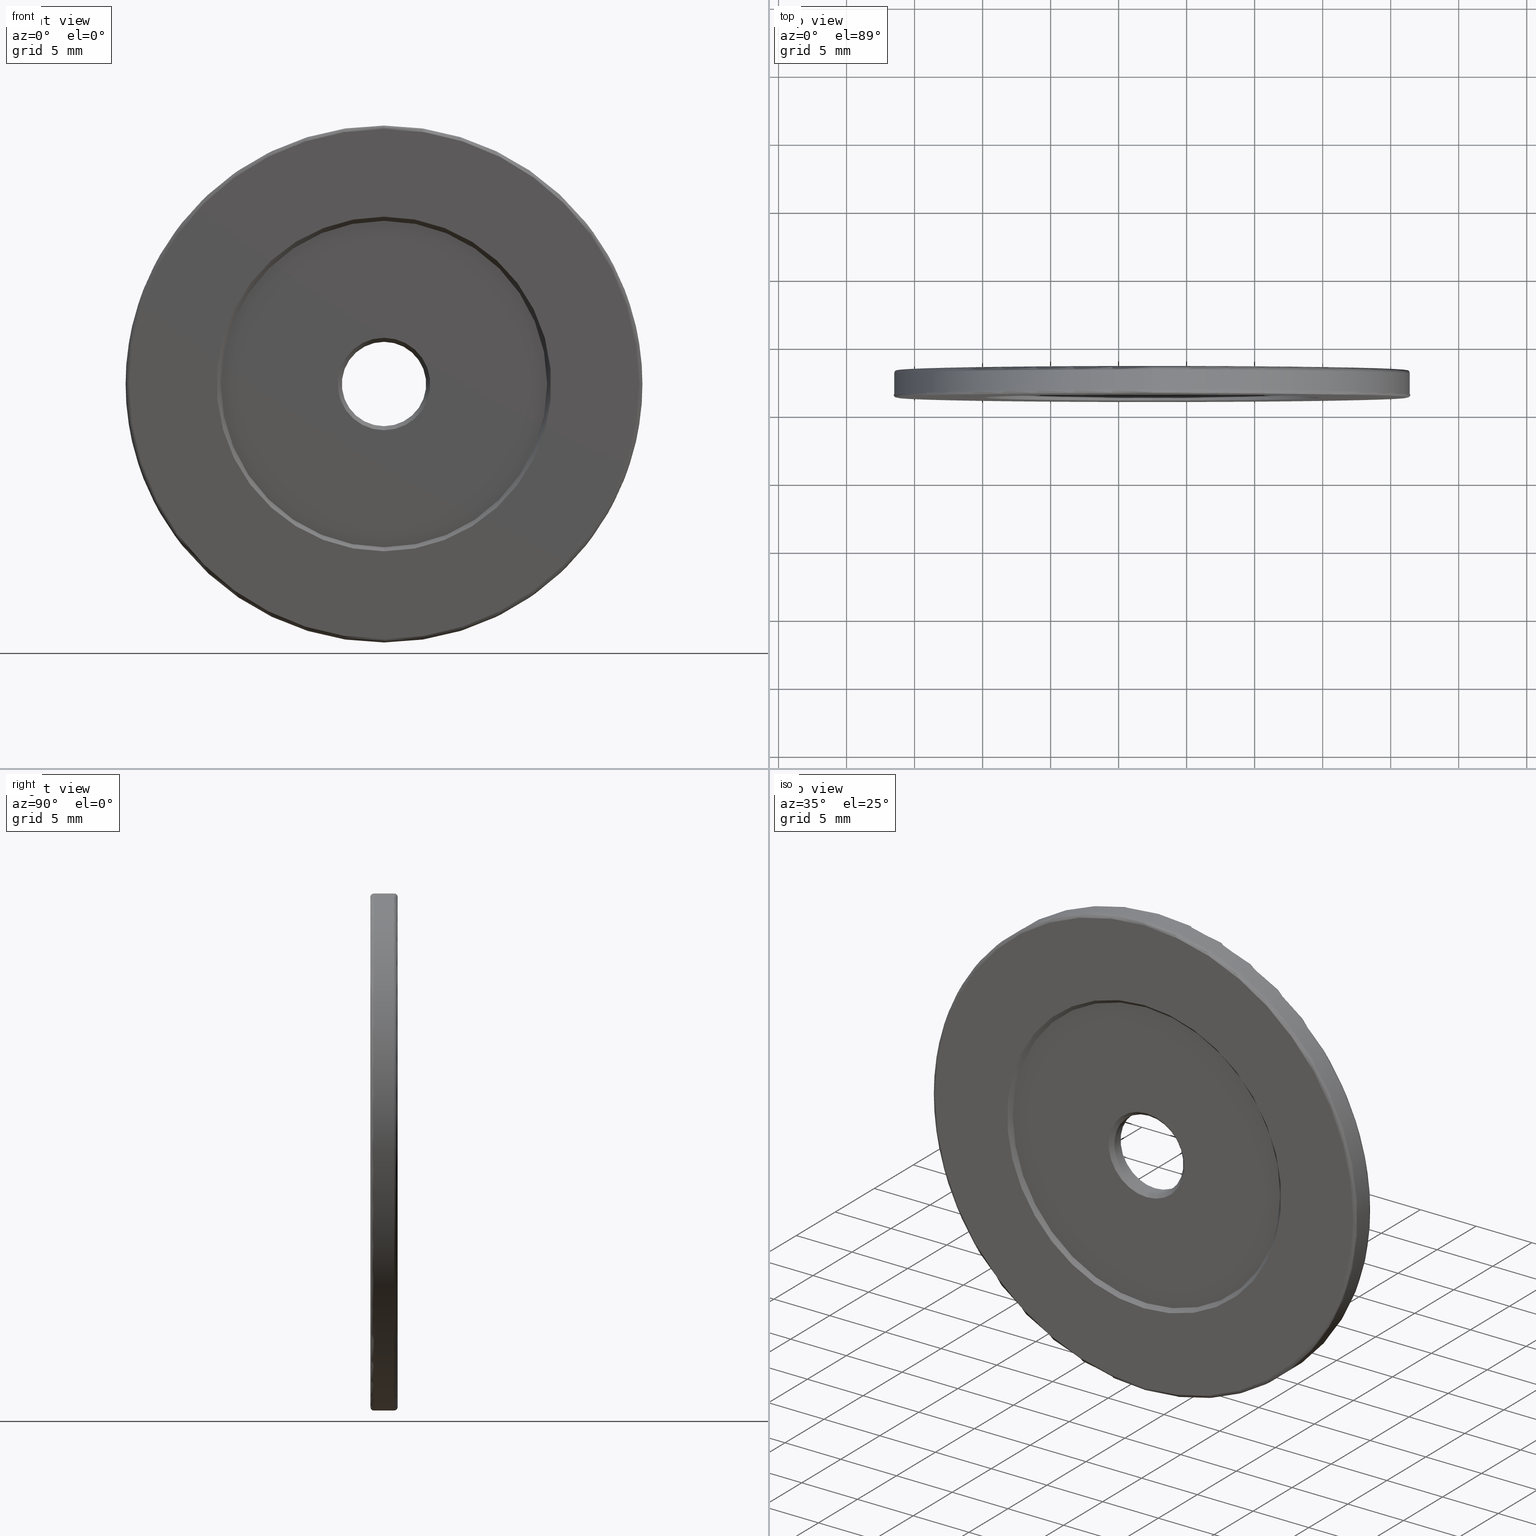
[diagram: canonical four-view strip — front | top / right | iso, engineering-drawing reading convention]
A machine part, canonical four-view strip (front | top / right | iso — engineering-drawing reading convention). The complete STEP part file that produces these views, byte-faithful:
ISO-10303-21;
HEADER;
FILE_DESCRIPTION (( 'STEP AP203' ),
    '1' );
FILE_NAME ('1.4.2.115_ZGH-38-DK2.STEP',
    '2024-04-06T05:19:27',
    ( '' ),
    ( '' ),
    'SwSTEP 2.0',
    'SolidWorks 2021',
    '' );
FILE_SCHEMA (( 'CONFIG_CONTROL_DESIGN' ));
ENDSEC;

DATA;
#1 = ORIENTED_EDGE ( 'NONE', *, *, #226, .T. ) ;
#2 = CARTESIAN_POINT ( 'NONE',  ( -7.546808913101048510, -2.143595127302728276, 38.00000000000000000 ) ) ;
#3 = EDGE_CURVE ( 'NONE', #402, #351, #409, .T. ) ;
#4 = ORIENTED_EDGE ( 'NONE', *, *, #373, .T. ) ;
#5 = CARTESIAN_POINT ( 'NONE',  ( -7.546808913101048510, -2.493595127302719483, 38.00000000000000000 ) ) ;
#6 = DIRECTION ( 'NONE',  ( 0.000000000000000000, 0.000000000000000000, 1.000000000000000000 ) ) ;
#7 = EDGE_CURVE ( 'NONE', #404, #63, #360, .T. ) ;
#8 = EDGE_LOOP ( 'NONE', ( #138, #28, #235, #19 ) ) ;
#9 = CALENDAR_DATE ( 2024, 6, 4 ) ;
#10 = LOCAL_TIME ( 13, 19, 27.00000000000000000, #205 ) ;
#11 = CYLINDRICAL_SURFACE ( 'NONE', #376, 3.099999999999998757 ) ;
#12 = EDGE_LOOP ( 'NONE', ( #114, #314, #130, #611 ) ) ;
#13 = DIRECTION ( 'NONE',  ( 0.000000000000000000, 0.000000000000000000, 1.000000000000000000 ) ) ;
#14 = FACE_OUTER_BOUND ( 'NONE', #185, .T. ) ;
#15 = SHELL_BASED_SURFACE_MODEL ( 'NONE', ( #233 ) );
#16 = DIRECTION ( 'NONE',  ( 0.000000000000000000, 0.000000000000000000, 1.000000000000000000 ) ) ;
#17 = APPROVAL_DATE_TIME ( #543, #308 ) ;
#18 = CARTESIAN_POINT ( 'NONE',  ( -7.546808913101048510, -2.193595127302727654, 38.00000000000000000 ) ) ;
#19 = ORIENTED_EDGE ( 'NONE', *, *, #454, .F. ) ;
#20 = APPROVAL_ROLE ( '' ) ;
#21 = CARTESIAN_POINT ( 'NONE',  ( -7.546808913101048510, -2.193595127302727654, 38.00000000000000000 ) ) ;
#22 = CIRCLE ( 'NONE', #147, 12.00000000000000355 ) ;
#23 = DIRECTION ( 'NONE',  ( 0.000000000000000000, 1.000000000000000000, 0.000000000000000000 ) ) ;
#24 = PRODUCT_RELATED_PRODUCT_CATEGORY ( 'detail', '', ( #190 ) ) ;
#25 = ORIENTED_EDGE ( 'NONE', *, *, #137, .T. ) ;
#26 = UNCERTAINTY_MEASURE_WITH_UNIT (LENGTH_MEASURE( 1.000000000000000082E-05 ), #343, 'distance_accuracy_value', 'NONE');
#27 = DIRECTION ( 'NONE',  ( 0.000000000000000000, 0.000000000000000000, -1.000000000000000000 ) ) ;
#28 = ORIENTED_EDGE ( 'NONE', *, *, #479, .T. ) ;
#29 = FACE_BOUND ( 'NONE', #392, .T. ) ;
#30 = AXIS2_PLACEMENT_3D ( 'NONE', #222, #602, #367 ) ;
#31 = VECTOR ( 'NONE', #46, 1000.000000000000000 ) ;
#32 = DIRECTION ( 'NONE',  ( 0.000000000000000000, 1.000000000000000000, 0.000000000000000000 ) ) ;
#33 = AXIS2_PLACEMENT_3D ( 'NONE', #502, #456, #585 ) ;
#34 = EDGE_LOOP ( 'NONE', ( #42, #4, #264, #383 ) ) ;
#35 = CARTESIAN_POINT ( 'NONE',  ( -7.546808913101048510, -2.143595127302728276, 56.99999999999999289 ) ) ;
#36 = ORIENTED_EDGE ( 'NONE', *, *, #113, .F. ) ;
#37 = PLANE ( 'NONE',  #375 ) ;
#38 = DIRECTION ( 'NONE',  ( 0.000000000000000000, 0.000000000000000000, -1.000000000000000000 ) ) ;
#39 = AXIS2_PLACEMENT_3D ( 'NONE', #378, #290, #154 ) ;
#40 = AXIS2_PLACEMENT_3D ( 'NONE', #494, #153, #121 ) ;
#41 = DIRECTION ( 'NONE',  ( 1.000000000000000000, -0.000000000000000000, 1.224646799147353207E-16 ) ) ;
#42 = ORIENTED_EDGE ( 'NONE', *, *, #603, .F. ) ;
#43 = CARTESIAN_POINT ( 'NONE',  ( -7.546808913101048510, -1.893595127302727832, 38.00000000000000000 ) ) ;
#44 = ADVANCED_FACE ( 'NONE', ( #491 ), #82, .T. ) ;
#45 = EDGE_LOOP ( 'NONE', ( #249, #25 ) ) ;
#46 = DIRECTION ( 'NONE',  ( 8.659560562354857670E-17, -0.7071067811865536790, 0.7071067811865414665 ) ) ;
#47 = CIRCLE ( 'NONE', #159, 18.99999999999999645 ) ;
#48 = EDGE_LOOP ( 'NONE', ( #198, #230, #530, #591 ) ) ;
#49 = LOCAL_TIME ( 13, 19, 27.00000000000000000, #347 ) ;
#50 = CIRCLE ( 'NONE', #161, 18.74999999999999645 ) ;
#51 = ORIENTED_EDGE ( 'NONE', *, *, #396, .T. ) ;
#52 = ADVANCED_FACE ( 'NONE', ( #354, #117 ), #204, .T. ) ;
#53 = EDGE_CURVE ( 'NONE', #272, #404, #213, .T. ) ;
#54 = ORIENTED_EDGE ( 'NONE', *, *, #282, .T. ) ;
#55 = APPROVAL_ROLE ( '' ) ;
#56 = CARTESIAN_POINT ( 'NONE',  ( -7.546808913101048510, -2.193595127302727654, 38.00000000000000000 ) ) ;
#57 = ORIENTED_EDGE ( 'NONE', *, *, #167, .F. ) ;
#58 = FACE_OUTER_BOUND ( 'NONE', #211, .T. ) ;
#59 = CIRCLE ( 'NONE', #180, 0.2500000000000002220 ) ;
#60 = DIRECTION ( 'NONE',  ( 0.000000000000000000, -0.7071067811865536790, -0.7071067811865414665 ) ) ;
#61 = SECURITY_CLASSIFICATION ( '', '', #68 ) ;
#62 = AXIS2_PLACEMENT_3D ( 'NONE', #206, #587, #148 ) ;
#63 = VERTEX_POINT ( 'NONE', #539 ) ;
#64 = DIRECTION ( 'NONE',  ( 0.000000000000000000, 0.000000000000000000, 1.000000000000000000 ) ) ;
#65 = CARTESIAN_POINT ( 'NONE',  ( -7.546808913101048510, -2.193595127302727654, 38.00000000000000000 ) ) ;
#66 = ADVANCED_FACE ( 'NONE', ( #559 ), #275, .F. ) ;
#67 = CARTESIAN_POINT ( 'NONE',  ( -7.546808913101048510, -3.593595127302728010, 38.00000000000000000 ) ) ;
#68 = SECURITY_CLASSIFICATION_LEVEL ( 'unclassified' ) ;
#69 = CARTESIAN_POINT ( 'NONE',  ( -7.546808913101048510, -3.293595127302728187, 41.09999999999999432 ) ) ;
#70 = EDGE_LOOP ( 'NONE', ( #486, #397 ) ) ;
#71 = ADVANCED_FACE ( 'NONE', ( #223 ), #259, .T. ) ;
#72 = DIRECTION ( 'NONE',  ( 8.659560562354858902E-17, 0.7071067811865536790, -0.7071067811865414665 ) ) ;
#73 = CC_DESIGN_PERSON_AND_ORGANIZATION_ASSIGNMENT ( #540, #111, ( #461 ) ) ;
#74 = AXIS2_PLACEMENT_3D ( 'NONE', #555, #183, #475 ) ;
#75 = ORIENTED_EDGE ( 'NONE', *, *, #609, .T. ) ;
#76 = CALENDAR_DATE ( 2024, 6, 4 ) ;
#77 = LINE ( 'NONE', #164, #127 ) ;
#78 = ORIENTED_EDGE ( 'NONE', *, *, #125, .F. ) ;
#79 = FACE_OUTER_BOUND ( 'NONE', #394, .T. ) ;
#80 = DIRECTION ( 'NONE',  ( 0.000000000000000000, 1.000000000000000000, 0.000000000000000000 ) ) ;
#81 = AXIS2_PLACEMENT_3D ( 'NONE', #276, #512, #519 ) ;
#82 = TOROIDAL_SURFACE ( 'NONE', #449, 18.75000000000000000, 0.2500000000000000000 ) ;
#83 = CONICAL_SURFACE ( 'NONE', #400, 3.400000000000000355, 0.7853981633974490562 ) ;
#84 = CARTESIAN_POINT ( 'NONE',  ( -7.546808913101045846, -2.143595127302728276, 19.25000000000000000 ) ) ;
#85 = VERTEX_POINT ( 'NONE', #551 ) ;
#86 = DIRECTION ( 'NONE',  ( 0.000000000000000000, 0.000000000000000000, 1.000000000000000000 ) ) ;
#87 = DIRECTION ( 'NONE',  ( -0.000000000000000000, 1.000000000000000000, -0.000000000000000000 ) ) ;
#88 = AXIS2_PLACEMENT_3D ( 'NONE', #193, #202, #427 ) ;
#89 = CARTESIAN_POINT ( 'NONE',  ( -7.546808913101048510, -3.893595127302727832, 38.00000000000000000 ) ) ;
#90 = VERTEX_POINT ( 'NONE', #508 ) ;
#91 = DIRECTION ( 'NONE',  ( -0.000000000000000000, -1.000000000000000000, -0.000000000000000000 ) ) ;
#92 = CC_DESIGN_PERSON_AND_ORGANIZATION_ASSIGNMENT ( #208, #450, ( #61 ) ) ;
#93 = ORIENTED_EDGE ( 'NONE', *, *, #169, .F. ) ;
#94 = VECTOR ( 'NONE', #224, 1000.000000000000000 ) ;
#95 = ORIENTED_EDGE ( 'NONE', *, *, #488, .F. ) ;
#96 = CIRCLE ( 'NONE', #436, 18.74999999999999645 ) ;
#97 = ADVANCED_FACE ( 'NONE', ( #243, #381 ), #99, .T. ) ;
#98 = VERTEX_POINT ( 'NONE', #526 ) ;
#99 = PLANE ( 'NONE',  #88 ) ;
#100 = ORIENTED_EDGE ( 'NONE', *, *, #203, .F. ) ;
#101 = CARTESIAN_POINT ( 'NONE',  ( -7.546808913101048510, -1.893595127302727832, 38.00000000000000000 ) ) ;
#102 = DIRECTION ( 'NONE',  ( 0.000000000000000000, 1.000000000000000000, 0.000000000000000000 ) ) ;
#103 = ORIENTED_EDGE ( 'NONE', *, *, #569, .T. ) ;
#104 = CARTESIAN_POINT ( 'NONE',  ( -7.546808913101045846, -3.643595127302727832, 19.25000000000000000 ) ) ;
#105 = CIRCLE ( 'NONE', #144, 3.099999999999998757 ) ;
#106 = LOCAL_TIME ( 13, 19, 27.00000000000000000, #352 ) ;
#107 = DIRECTION ( 'NONE',  ( 0.000000000000000000, 0.000000000000000000, 1.000000000000000000 ) ) ;
#108 = EDGE_CURVE ( 'NONE', #189, #145, #96, .T. ) ;
#109 = AXIS2_PLACEMENT_3D ( 'NONE', #533, #102, #107 ) ;
#110 = DIRECTION ( 'NONE',  ( 0.000000000000000000, 0.000000000000000000, -1.000000000000000000 ) ) ;
#111 = PERSON_AND_ORGANIZATION_ROLE ( 'creator' ) ;
#112 = CARTESIAN_POINT ( 'NONE',  ( -7.546808913101045846, -3.643595127302727832, 56.99999999999999289 ) ) ;
#113 = EDGE_CURVE ( 'NONE', #351, #560, #443, .T. ) ;
#114 = ORIENTED_EDGE ( 'NONE', *, *, #455, .T. ) ;
#115 = SHAPE_DEFINITION_REPRESENTATION ( #177, #283 ) ;
#116 = CARTESIAN_POINT ( 'NONE',  ( -7.546808913101048510, -3.893595127302727832, 38.00000000000000000 ) ) ;
#117 = FACE_OUTER_BOUND ( 'NONE', #45, .T. ) ;
#118 = FACE_OUTER_BOUND ( 'NONE', #369, .T. ) ;
#119 = EDGE_CURVE ( 'NONE', #85, #476, #225, .T. ) ;
#120 = CIRCLE ( 'NONE', #346, 12.00000000000000355 ) ;
#121 = DIRECTION ( 'NONE',  ( 0.000000000000000000, 0.000000000000000000, 1.000000000000000000 ) ) ;
#122 = CARTESIAN_POINT ( 'NONE',  ( -7.546808913101048510, -3.593595127302728010, 25.99999999999999645 ) ) ;
#123 = DIRECTION ( 'NONE',  ( 0.000000000000000000, -1.000000000000000000, 0.000000000000000000 ) ) ;
#124 = DIRECTION ( 'NONE',  ( 8.659560562354833018E-17, 0.7071067811865556774, -0.7071067811865393571 ) ) ;
#125 = EDGE_CURVE ( 'NONE', #476, #85, #278, .T. ) ;
#126 = VECTOR ( 'NONE', #87, 1000.000000000000000 ) ;
#127 = VECTOR ( 'NONE', #303, 1000.000000000000000 ) ;
#128 = ORIENTED_EDGE ( 'NONE', *, *, #140, .F. ) ;
#129 = DIRECTION ( 'NONE',  ( 0.000000000000000000, 1.000000000000000000, 0.000000000000000000 ) ) ;
#130 = ORIENTED_EDGE ( 'NONE', *, *, #552, .T. ) ;
#131 = CARTESIAN_POINT ( 'NONE',  ( -7.546808913101046734, -3.893595127302727832, 50.29999999999999716 ) ) ;
#132 = DIRECTION ( 'NONE',  ( 0.000000000000000000, 0.000000000000000000, 1.000000000000000000 ) ) ;
#133 = LINE ( 'NONE', #186, #126 ) ;
#134 = AXIS2_PLACEMENT_3D ( 'NONE', #564, #91, #38 ) ;
#135 = VECTOR ( 'NONE', #72, 1000.000000000000000 ) ;
#136 = CARTESIAN_POINT ( 'NONE',  ( -7.546808913101048510, -2.193595127302736536, 50.00000000000000000 ) ) ;
#137 = EDGE_CURVE ( 'NONE', #304, #389, #120, .T. ) ;
#138 = ORIENTED_EDGE ( 'NONE', *, *, #137, .F. ) ;
#139 = CARTESIAN_POINT ( 'NONE',  ( -7.546808913101048510, -2.493595127302719483, 41.09999999999999432 ) ) ;
#140 = EDGE_CURVE ( 'NONE', #90, #441, #604, .T. ) ;
#141 = ORIENTED_EDGE ( 'NONE', *, *, #319, .F. ) ;
#142 = DIRECTION ( 'NONE',  ( 0.000000000000000000, 0.000000000000000000, -1.000000000000000000 ) ) ;
#143 = DIRECTION ( 'NONE',  ( 0.000000000000000000, 0.000000000000000000, 1.000000000000000000 ) ) ;
#144 = AXIS2_PLACEMENT_3D ( 'NONE', #5, #296, #13 ) ;
#145 = VERTEX_POINT ( 'NONE', #432 ) ;
#146 = LINE ( 'NONE', #139, #478 ) ;
#147 = AXIS2_PLACEMENT_3D ( 'NONE', #21, #595, #597 ) ;
#148 = DIRECTION ( 'NONE',  ( 0.000000000000000000, 0.000000000000000000, 1.000000000000000000 ) ) ;
#149 = ORIENTED_EDGE ( 'NONE', *, *, #603, .T. ) ;
#150 = PERSON_AND_ORGANIZATION ( #514, #386 ) ;
#151 = APPROVAL ( #261, 'δָ��' ) ;
#152 = CARTESIAN_POINT ( 'NONE',  ( -7.546808913101048510, -3.893595127302727832, 38.00000000000000000 ) ) ;
#153 = DIRECTION ( 'NONE',  ( -0.000000000000000000, 1.000000000000000000, -0.000000000000000000 ) ) ;
#154 = DIRECTION ( 'NONE',  ( 1.000000000000000000, 0.000000000000000000, 0.000000000000000000 ) ) ;
#155 = ADVANCED_FACE ( 'NONE', ( #333 ), #11, .F. ) ;
#156 = DIRECTION ( 'NONE',  ( 0.000000000000000000, 1.000000000000000000, 0.000000000000000000 ) ) ;
#157 = ORIENTED_EDGE ( 'NONE', *, *, #322, .F. ) ;
#158 = CALENDAR_DATE ( 2024, 6, 4 ) ;
#159 = AXIS2_PLACEMENT_3D ( 'NONE', #2, #330, #568 ) ;
#160 = CARTESIAN_POINT ( 'NONE',  ( -7.546808913101048510, -1.893595127302727832, 38.00000000000000000 ) ) ;
#161 = AXIS2_PLACEMENT_3D ( 'NONE', #116, #209, #546 ) ;
#162 = ORIENTED_EDGE ( 'NONE', *, *, #373, .F. ) ;
#163 = DATE_TIME_ROLE ( 'classification_date' ) ;
#164 = CARTESIAN_POINT ( 'NONE',  ( -7.546808913101048510, -3.593595127302728010, 34.60000000000000142 ) ) ;
#165 = ORIENTED_EDGE ( 'NONE', *, *, #455, .F. ) ;
#166 = PERSON_AND_ORGANIZATION_ROLE ( 'design_supplier' ) ;
#167 = EDGE_CURVE ( 'NONE', #251, #357, #341, .T. ) ;
#168 = DIRECTION ( 'NONE',  ( -0.000000000000000000, -1.000000000000000000, -0.000000000000000000 ) ) ;
#169 = EDGE_CURVE ( 'NONE', #560, #377, #188, .T. ) ;
#170 = ORIENTED_EDGE ( 'NONE', *, *, #3, .T. ) ;
#171 = CARTESIAN_POINT ( 'NONE',  ( -7.546808913101048510, -3.893595127302727832, 38.00000000000000000 ) ) ;
#172 = CONICAL_SURFACE ( 'NONE', #447, 3.400000000000000355, 0.7853981633974490562 ) ;
#173 = CC_DESIGN_SECURITY_CLASSIFICATION ( #61, ( #461 ) ) ;
#174 = DIRECTION ( 'NONE',  ( 0.000000000000000000, 0.000000000000000000, 1.000000000000000000 ) ) ;
#175 = ADVANCED_FACE ( 'NONE', ( #293 ), #577, .T. ) ;
#176 = CARTESIAN_POINT ( 'NONE',  ( -7.546808913101048510, -2.193595127302727654, 50.00000000000000000 ) ) ;
#177 = PRODUCT_DEFINITION_SHAPE ( 'NONE', 'NONE',  #421 ) ;
#178 = LINE ( 'NONE', #273, #576 ) ;
#179 = ADVANCED_FACE ( 'NONE', ( #14 ), #464, .T. ) ;
#180 = AXIS2_PLACEMENT_3D ( 'NONE', #104, #431, #492 ) ;
#181 = APPROVAL ( #487, 'δָ��' ) ;
#182 = ORIENTED_EDGE ( 'NONE', *, *, #234, .F. ) ;
#183 = DIRECTION ( 'NONE',  ( 0.000000000000000000, 1.000000000000000000, 0.000000000000000000 ) ) ;
#184 = DIRECTION ( 'NONE',  ( -1.000000000000000000, 0.000000000000000000, 0.000000000000000000 ) ) ;
#185 = EDGE_LOOP ( 'NONE', ( #162, #182, #294, #466 ) ) ;
#186 = CARTESIAN_POINT ( 'NONE',  ( -7.546808913101048510, -3.893595127302727832, 41.09999999999999432 ) ) ;
#187 = CIRCLE ( 'NONE', #81, 3.099999999999998757 ) ;
#188 = CIRCLE ( 'NONE', #109, 12.29999999999999893 ) ;
#189 = VERTEX_POINT ( 'NONE', #584 ) ;
#190 = PRODUCT ( '1.4.2.115_ZGH-38-DK2', '1.4.2.115_ZGH-38-DK2', '', ( #482 ) ) ;
#191 = EDGE_LOOP ( 'NONE', ( #149, #419, #448, #425 ) ) ;
#192 = DIRECTION ( 'NONE',  ( -0.000000000000000000, -1.000000000000000000, -0.000000000000000000 ) ) ;
#193 = CARTESIAN_POINT ( 'NONE',  ( -7.546808913101048510, -1.893595127302727832, 38.00000000000000000 ) ) ;
#194 = VERTEX_POINT ( 'NONE', #250 ) ;
#195 = DIRECTION ( 'NONE',  ( 0.000000000000000000, 1.000000000000000000, 0.000000000000000000 ) ) ;
#196 = DIRECTION ( 'NONE',  ( -0.000000000000000000, -1.000000000000000000, -0.000000000000000000 ) ) ;
#197 = LOCAL_TIME ( 13, 19, 27.00000000000000000, #242 ) ;
#198 = ORIENTED_EDGE ( 'NONE', *, *, #552, .F. ) ;
#199 = DIRECTION ( 'NONE',  ( -0.000000000000000000, -1.000000000000000000, -0.000000000000000000 ) ) ;
#200 = AXIS2_PLACEMENT_3D ( 'NONE', #408, #405, #507 ) ;
#201 = ORIENTED_EDGE ( 'NONE', *, *, #510, .T. ) ;
#202 = DIRECTION ( 'NONE',  ( 0.000000000000000000, 1.000000000000000000, 0.000000000000000000 ) ) ;
#203 = EDGE_CURVE ( 'NONE', #238, #357, #578, .T. ) ;
#204 = PLANE ( 'NONE',  #33 ) ;
#205 = COORDINATED_UNIVERSAL_TIME_OFFSET ( 8, 0, .AHEAD. ) ;
#206 = CARTESIAN_POINT ( 'NONE',  ( -7.546808913101048510, -3.643595127302727832, 38.00000000000000000 ) ) ;
#207 = EDGE_LOOP ( 'NONE', ( #462, #379, #444, #579 ) ) ;
#208 = PERSON_AND_ORGANIZATION ( #514, #386 ) ;
#209 = DIRECTION ( 'NONE',  ( -0.000000000000000000, -1.000000000000000000, -0.000000000000000000 ) ) ;
#210 = EDGE_CURVE ( 'NONE', #98, #476, #253, .T. ) ;
#211 = EDGE_LOOP ( 'NONE', ( #570, #141, #406, #128 ) ) ;
#212 = DIRECTION ( 'NONE',  ( 0.000000000000000000, 0.000000000000000000, 1.000000000000000000 ) ) ;
#213 = LINE ( 'NONE', #345, #589 ) ;
#214 = LINE ( 'NONE', #403, #521 ) ;
#215 = ORIENTED_EDGE ( 'NONE', *, *, #328, .F. ) ;
#216 = CARTESIAN_POINT ( 'NONE',  ( -7.546808913101048510, -3.293595127302728187, 34.89999999999999858 ) ) ;
#217 = CIRCLE ( 'NONE', #200, 18.99999999999999645 ) ;
#218 = ADVANCED_FACE ( 'NONE', ( #401 ), #490, .T. ) ;
#219 = VERTEX_POINT ( 'NONE', #307 ) ;
#220 = CARTESIAN_POINT ( 'NONE',  ( -7.546808913101048510, -3.593595127302728010, 38.00000000000000000 ) ) ;
#221 = EDGE_CURVE ( 'NONE', #357, #238, #217, .T. ) ;
#222 = CARTESIAN_POINT ( 'NONE',  ( -7.546808913101048510, -1.893595127302727832, 38.00000000000000000 ) ) ;
#223 = FACE_OUTER_BOUND ( 'NONE', #207, .T. ) ;
#224 = DIRECTION ( 'NONE',  ( -0.000000000000000000, 1.000000000000000000, -0.000000000000000000 ) ) ;
#225 = CIRCLE ( 'NONE', #423, 3.399999999999986144 ) ;
#226 = EDGE_CURVE ( 'NONE', #63, #404, #416, .T. ) ;
#227 = DIRECTION ( 'NONE',  ( 0.000000000000000000, 0.7071067811865556774, 0.7071067811865393571 ) ) ;
#228 = DIRECTION ( 'NONE',  ( 0.000000000000000000, 0.000000000000000000, 1.000000000000000000 ) ) ;
#229 = CARTESIAN_POINT ( 'NONE',  ( -7.546808913101048510, -3.593595127302728010, 38.00000000000000000 ) ) ;
#230 = ORIENTED_EDGE ( 'NONE', *, *, #210, .T. ) ;
#231 = CARTESIAN_POINT ( 'NONE',  ( -7.546808913101048510, -2.193595127302736536, 38.00000000000000000 ) ) ;
#232 =( GEOMETRIC_REPRESENTATION_CONTEXT ( 3 ) GLOBAL_UNCERTAINTY_ASSIGNED_CONTEXT ( ( #26 ) ) GLOBAL_UNIT_ASSIGNED_CONTEXT ( ( #343, #612, #236 ) ) REPRESENTATION_CONTEXT ( 'NONE', 'WORKASPACE' ) );
#233 = OPEN_SHELL ( 'NONE', ( #363, #371, #66, #350, #440, #71, #468, #218, #97, #179, #175, #44, #500, #267, #266, #515, #155, #338, #52, #573 ) ) ;
#234 = EDGE_CURVE ( 'NONE', #251, #194, #270, .T. ) ;
#235 = ORIENTED_EDGE ( 'NONE', *, *, #598, .F. ) ;
#236 =( NAMED_UNIT ( * ) SI_UNIT ( $, .STERADIAN. ) SOLID_ANGLE_UNIT ( ) );
#237 = DIRECTION ( 'NONE',  ( 0.000000000000000000, 0.000000000000000000, 1.000000000000000000 ) ) ;
#238 = VERTEX_POINT ( 'NONE', #497 ) ;
#239 = PERSON_AND_ORGANIZATION ( #514, #386 ) ;
#240 = DIRECTION ( 'NONE',  ( -0.000000000000000000, -1.000000000000000000, -0.000000000000000000 ) ) ;
#241 = ORIENTED_EDGE ( 'NONE', *, *, #203, .T. ) ;
#242 = COORDINATED_UNIVERSAL_TIME_OFFSET ( 8, 0, .AHEAD. ) ;
#243 = FACE_OUTER_BOUND ( 'NONE', #339, .T. ) ;
#244 = CIRCLE ( 'NONE', #518, 0.2500000000000002220 ) ;
#245 = ORIENTED_EDGE ( 'NONE', *, *, #53, .F. ) ;
#246 = DIRECTION ( 'NONE',  ( 0.000000000000000000, 0.7071067811865536790, 0.7071067811865414665 ) ) ;
#247 = CIRCLE ( 'NONE', #297, 3.099999999999998757 ) ;
#248 = CARTESIAN_POINT ( 'NONE',  ( -7.546808913101045846, -1.893595127302727832, 56.99999999999999289 ) ) ;
#249 = ORIENTED_EDGE ( 'NONE', *, *, #319, .T. ) ;
#250 = CARTESIAN_POINT ( 'NONE',  ( -7.546808913101044958, -2.143595127302728276, 19.00000000000000000 ) ) ;
#251 = VERTEX_POINT ( 'NONE', #35 ) ;
#252 = COORDINATED_UNIVERSAL_TIME_OFFSET ( 8, 0, .AHEAD. ) ;
#253 = LINE ( 'NONE', #268, #135 ) ;
#254 = EDGE_CURVE ( 'NONE', #280, #63, #77, .T. ) ;
#255 = ORIENTED_EDGE ( 'NONE', *, *, #7, .F. ) ;
#256 = PERSON_AND_ORGANIZATION ( #514, #386 ) ;
#257 = CIRCLE ( 'NONE', #588, 0.2500000000000002220 ) ;
#258 = APPROVAL_PERSON_ORGANIZATION ( #445, #308, #20 ) ;
#259 = TOROIDAL_SURFACE ( 'NONE', #366, 18.75000000000000000, 0.2500000000000000000 ) ;
#260 = EDGE_LOOP ( 'NONE', ( #57, #332, #54, #241 ) ) ;
#261 = APPROVAL_STATUS ( 'not_yet_approved' ) ;
#262 = FACE_OUTER_BOUND ( 'NONE', #563, .T. ) ;
#263 = CC_DESIGN_PERSON_AND_ORGANIZATION_ASSIGNMENT ( #239, #380, ( #190 ) ) ;
#264 = ORIENTED_EDGE ( 'NONE', *, *, #510, .F. ) ;
#265 = CARTESIAN_POINT ( 'NONE',  ( -7.546808913101048510, -3.593595127302728010, 38.00000000000000000 ) ) ;
#266 = ADVANCED_FACE ( 'NONE', ( #29, #505 ), #544, .T. ) ;
#267 = ADVANCED_FACE ( 'NONE', ( #262 ), #566, .F. ) ;
#268 = CARTESIAN_POINT ( 'NONE',  ( -7.546808913101048510, -2.493595127302719483, 34.89999999999999858 ) ) ;
#269 = CC_DESIGN_APPROVAL ( #151, ( #461 ) ) ;
#270 = CIRCLE ( 'NONE', #398, 18.99999999999999645 ) ;
#271 = DIRECTION ( 'NONE',  ( -0.000000000000000000, -1.000000000000000000, -0.000000000000000000 ) ) ;
#272 = VERTEX_POINT ( 'NONE', #69 ) ;
#273 = CARTESIAN_POINT ( 'NONE',  ( -7.546808913101046734, -2.193595127302736536, 25.99999999999999645 ) ) ;
#274 = EDGE_CURVE ( 'NONE', #351, #402, #556, .T. ) ;
#275 = CYLINDRICAL_SURFACE ( 'NONE', #599, 3.099999999999998757 ) ;
#276 = CARTESIAN_POINT ( 'NONE',  ( -7.546808913101048510, -3.293595127302728187, 38.00000000000000000 ) ) ;
#277 = CC_DESIGN_APPROVAL ( #181, ( #421 ) ) ;
#278 = CIRCLE ( 'NONE', #529, 3.399999999999986144 ) ;
#279 = FACE_OUTER_BOUND ( 'NONE', #481, .T. ) ;
#280 = VERTEX_POINT ( 'NONE', #216 ) ;
#281 = CARTESIAN_POINT ( 'NONE',  ( -7.546808913101048510, -2.493595127302719483, 41.09999999999999432 ) ) ;
#282 = EDGE_CURVE ( 'NONE', #194, #238, #214, .T. ) ;
#283 = MANIFOLD_SURFACE_SHAPE_REPRESENTATION ( '1.4.2.115_ZGH-38-DK2', ( #15, #39 ), #232 ) ;
#284 = ORIENTED_EDGE ( 'NONE', *, *, #169, .T. ) ;
#285 = DIRECTION ( 'NONE',  ( 0.000000000000000000, 1.000000000000000000, 0.000000000000000000 ) ) ;
#286 = DIRECTION ( 'NONE',  ( 0.000000000000000000, 0.000000000000000000, 1.000000000000000000 ) ) ;
#287 = CONICAL_SURFACE ( 'NONE', #74, 3.099999999999998757, 0.7853981633974396193 ) ;
#288 = AXIS2_PLACEMENT_3D ( 'NONE', #493, #156, #6 ) ;
#289 = EDGE_LOOP ( 'NONE', ( #329, #326 ) ) ;
#290 = DIRECTION ( 'NONE',  ( 0.000000000000000000, 0.000000000000000000, 1.000000000000000000 ) ) ;
#291 = DIRECTION ( 'NONE',  ( -0.000000000000000000, 1.000000000000000000, -0.000000000000000000 ) ) ;
#292 = EDGE_LOOP ( 'NONE', ( #301, #157, #51, #100 ) ) ;
#293 = FACE_OUTER_BOUND ( 'NONE', #260, .T. ) ;
#294 = ORIENTED_EDGE ( 'NONE', *, *, #387, .T. ) ;
#295 = DIRECTION ( 'NONE',  ( 0.000000000000000000, 1.000000000000000000, 0.000000000000000000 ) ) ;
#296 = DIRECTION ( 'NONE',  ( 0.000000000000000000, 1.000000000000000000, 0.000000000000000000 ) ) ;
#297 = AXIS2_PLACEMENT_3D ( 'NONE', #457, #80, #300 ) ;
#298 = DIRECTION ( 'NONE',  ( 8.659560562354939021E-17, -0.7071067811865470176, 0.7071067811865480168 ) ) ;
#299 = DATE_AND_TIME ( #158, #49 ) ;
#300 = DIRECTION ( 'NONE',  ( 0.000000000000000000, 0.000000000000000000, 1.000000000000000000 ) ) ;
#301 = ORIENTED_EDGE ( 'NONE', *, *, #562, .F. ) ;
#302 = CALENDAR_DATE ( 2024, 6, 4 ) ;
#303 = DIRECTION ( 'NONE',  ( 0.000000000000000000, -0.7071067811865470176, -0.7071067811865480168 ) ) ;
#304 = VERTEX_POINT ( 'NONE', #553 ) ;
#305 = APPROVAL_ROLE ( '' ) ;
#306 = CC_DESIGN_APPROVAL ( #308, ( #61 ) ) ;
#307 = CARTESIAN_POINT ( 'NONE',  ( -7.546808913101048510, -3.893595127302727832, 56.74999999999999289 ) ) ;
#308 = APPROVAL ( #399, 'δָ��' ) ;
#309 = AXIS2_PLACEMENT_3D ( 'NONE', #356, #353, #174 ) ;
#310 = ORIENTED_EDGE ( 'NONE', *, *, #274, .T. ) ;
#311 = CARTESIAN_POINT ( 'NONE',  ( -7.546808913101048510, -2.143595127302728276, 38.00000000000000000 ) ) ;
#312 = CARTESIAN_POINT ( 'NONE',  ( -7.546808913101048510, -3.643595127302727832, 38.00000000000000000 ) ) ;
#313 = DIRECTION ( 'NONE',  ( 0.000000000000000000, 0.000000000000000000, 1.000000000000000000 ) ) ;
#314 = ORIENTED_EDGE ( 'NONE', *, *, #488, .T. ) ;
#315 = AXIS2_PLACEMENT_3D ( 'NONE', #101, #192, #337 ) ;
#316 = DIRECTION ( 'NONE',  ( -1.000000000000000000, 0.000000000000000000, 0.000000000000000000 ) ) ;
#317 = AXIS2_PLACEMENT_3D ( 'NONE', #393, #439, #429 ) ;
#318 = DIRECTION ( 'NONE',  ( 0.000000000000000000, -0.000000000000000000, 1.000000000000000000 ) ) ;
#319 = EDGE_CURVE ( 'NONE', #389, #304, #22, .T. ) ;
#320 = ORIENTED_EDGE ( 'NONE', *, *, #254, .F. ) ;
#321 = FACE_OUTER_BOUND ( 'NONE', #191, .T. ) ;
#322 = EDGE_CURVE ( 'NONE', #219, #522, #503, .T. ) ;
#323 = CARTESIAN_POINT ( 'NONE',  ( -7.546808913101048510, -3.593595127302728010, 41.39999999999999858 ) ) ;
#324 = CC_DESIGN_DATE_AND_TIME_ASSIGNMENT ( #395, #592, ( #421 ) ) ;
#325 = AXIS2_PLACEMENT_3D ( 'NONE', #601, #452, #459 ) ;
#326 = ORIENTED_EDGE ( 'NONE', *, *, #3, .F. ) ;
#327 = CARTESIAN_POINT ( 'NONE',  ( -7.546808913101048510, -2.193595127302727654, 34.60000000000001563 ) ) ;
#328 = EDGE_CURVE ( 'NONE', #484, #98, #247, .T. ) ;
#329 = ORIENTED_EDGE ( 'NONE', *, *, #274, .F. ) ;
#330 = DIRECTION ( 'NONE',  ( -0.000000000000000000, -1.000000000000000000, -0.000000000000000000 ) ) ;
#331 = EDGE_CURVE ( 'NONE', #522, #219, #50, .T. ) ;
#332 = ORIENTED_EDGE ( 'NONE', *, *, #234, .T. ) ;
#333 = FACE_OUTER_BOUND ( 'NONE', #606, .T. ) ;
#334 = CIRCLE ( 'NONE', #315, 12.30000000000000604 ) ;
#335 = AXIS2_PLACEMENT_3D ( 'NONE', #311, #23, #509 ) ;
#336 = ORIENTED_EDGE ( 'NONE', *, *, #382, .T. ) ;
#337 = DIRECTION ( 'NONE',  ( 0.000000000000000000, 0.000000000000000000, 1.000000000000000000 ) ) ;
#338 = ADVANCED_FACE ( 'NONE', ( #118 ), #513, .F. ) ;
#339 = EDGE_LOOP ( 'NONE', ( #201, #498 ) ) ;
#340 = PERSON_AND_ORGANIZATION_ROLE ( 'creator' ) ;
#341 = LINE ( 'NONE', #248, #388 ) ;
#342 = DIRECTION ( 'NONE',  ( -0.000000000000000000, 1.000000000000000000, -0.000000000000000000 ) ) ;
#343 =( LENGTH_UNIT ( ) NAMED_UNIT ( * ) SI_UNIT ( .MILLI., .METRE. ) );
#344 = DIRECTION ( 'NONE',  ( 0.000000000000000000, 0.000000000000000000, 1.000000000000000000 ) ) ;
#345 = CARTESIAN_POINT ( 'NONE',  ( -7.546808913101048510, -3.593595127302728010, 41.39999999999999858 ) ) ;
#346 = AXIS2_PLACEMENT_3D ( 'NONE', #56, #582, #237 ) ;
#347 = COORDINATED_UNIVERSAL_TIME_OFFSET ( 8, 0, .AHEAD. ) ;
#348 = AXIS2_PLACEMENT_3D ( 'NONE', #410, #359, #550 ) ;
#349 = CARTESIAN_POINT ( 'NONE',  ( -7.546808913101048510, -3.593595127302728010, 38.00000000000000000 ) ) ;
#350 = ADVANCED_FACE ( 'NONE', ( #79 ), #83, .F. ) ;
#351 = VERTEX_POINT ( 'NONE', #122 ) ;
#352 = COORDINATED_UNIVERSAL_TIME_OFFSET ( 8, 0, .AHEAD. ) ;
#353 = DIRECTION ( 'NONE',  ( -0.000000000000000000, 1.000000000000000000, -0.000000000000000000 ) ) ;
#354 = FACE_BOUND ( 'NONE', #548, .T. ) ;
#355 = CC_DESIGN_PERSON_AND_ORGANIZATION_ASSIGNMENT ( #256, #166, ( #461 ) ) ;
#356 = CARTESIAN_POINT ( 'NONE',  ( -7.546808913101048510, -3.593595127302728010, 38.00000000000000000 ) ) ;
#357 = VERTEX_POINT ( 'NONE', #112 ) ;
#358 = CIRCLE ( 'NONE', #30, 18.74999999999999645 ) ;
#359 = DIRECTION ( 'NONE',  ( 0.000000000000000000, 1.000000000000000000, 0.000000000000000000 ) ) ;
#360 = CIRCLE ( 'NONE', #538, 3.400000000000000355 ) ;
#361 = CARTESIAN_POINT ( 'NONE',  ( -7.546808913101048510, -2.143595127302728276, 38.00000000000000000 ) ) ;
#362 = CARTESIAN_POINT ( 'NONE',  ( -7.546808913101046734, -3.593595127302728010, 50.00000000000000000 ) ) ;
#363 = ADVANCED_FACE ( 'NONE', ( #418 ), #424, .F. ) ;
#364 = AXIS2_PLACEMENT_3D ( 'NONE', #43, #271, #370 ) ;
#365 = CARTESIAN_POINT ( 'NONE',  ( -7.546808913101046734, -3.893595127302727832, 50.29999999999999716 ) ) ;
#366 = AXIS2_PLACEMENT_3D ( 'NONE', #312, #32, #132 ) ;
#367 = DIRECTION ( 'NONE',  ( 0.000000000000000000, 0.000000000000000000, 1.000000000000000000 ) ) ;
#368 = CARTESIAN_POINT ( 'NONE',  ( -7.546808913101048510, -3.893595127302727832, 38.00000000000000000 ) ) ;
#369 = EDGE_LOOP ( 'NONE', ( #428, #215, #506, #78 ) ) ;
#370 = DIRECTION ( 'NONE',  ( 0.000000000000000000, 0.000000000000000000, -1.000000000000000000 ) ) ;
#371 = ADVANCED_FACE ( 'NONE', ( #517 ), #287, .F. ) ;
#372 = CARTESIAN_POINT ( 'NONE',  ( -7.546808913101048510, -1.893595127302727832, 50.30000000000000426 ) ) ;
#373 = EDGE_CURVE ( 'NONE', #194, #189, #244, .T. ) ;
#374 = CIRCLE ( 'NONE', #460, 3.099999999999998757 ) ;
#375 = AXIS2_PLACEMENT_3D ( 'NONE', #89, #129, #318 ) ;
#376 = AXIS2_PLACEMENT_3D ( 'NONE', #152, #291, #483 ) ;
#377 = VERTEX_POINT ( 'NONE', #365 ) ;
#378 = CARTESIAN_POINT ( 'NONE',  ( 0.000000000000000000, 0.000000000000000000, 0.000000000000000000 ) ) ;
#379 = ORIENTED_EDGE ( 'NONE', *, *, #562, .T. ) ;
#380 = PERSON_AND_ORGANIZATION_ROLE ( 'design_owner' ) ;
#381 = FACE_BOUND ( 'NONE', #458, .T. ) ;
#382 = EDGE_CURVE ( 'NONE', #272, #484, #133, .T. ) ;
#383 = ORIENTED_EDGE ( 'NONE', *, *, #387, .F. ) ;
#384 = PERSON_AND_ORGANIZATION ( #514, #386 ) ;
#385 = DIRECTION ( 'NONE',  ( -0.000000000000000000, -1.000000000000000000, -0.000000000000000000 ) ) ;
#386 = ORGANIZATION ( 'δָ��', 'δָ��', '' ) ;
#387 = EDGE_CURVE ( 'NONE', #251, #145, #257, .T. ) ;
#388 = VECTOR ( 'NONE', #240, 1000.000000000000000 ) ;
#389 = VERTEX_POINT ( 'NONE', #176 ) ;
#390 = DATE_AND_TIME ( #9, #197 ) ;
#391 = DIRECTION ( 'NONE',  ( 0.000000000000000000, 0.000000000000000000, 1.000000000000000000 ) ) ;
#392 = EDGE_LOOP ( 'NONE', ( #1, #531 ) ) ;
#393 = CARTESIAN_POINT ( 'NONE',  ( -7.546808913101048510, -1.893595127302727832, 38.00000000000000000 ) ) ;
#394 = EDGE_LOOP ( 'NONE', ( #165, #474, #534, #320 ) ) ;
#395 = DATE_AND_TIME ( #302, #10 ) ;
#396 = EDGE_CURVE ( 'NONE', #219, #357, #422, .T. ) ;
#397 = ORIENTED_EDGE ( 'NONE', *, *, #331, .T. ) ;
#398 = AXIS2_PLACEMENT_3D ( 'NONE', #361, #593, #212 ) ;
#399 = APPROVAL_STATUS ( 'not_yet_approved' ) ;
#400 = AXIS2_PLACEMENT_3D ( 'NONE', #349, #541, #27 ) ;
#401 = FACE_OUTER_BOUND ( 'NONE', #34, .T. ) ;
#402 = VERTEX_POINT ( 'NONE', #362 ) ;
#403 = CARTESIAN_POINT ( 'NONE',  ( -7.546808913101048510, -1.893595127302727832, 19.00000000000000000 ) ) ;
#404 = VERTEX_POINT ( 'NONE', #323 ) ;
#405 = DIRECTION ( 'NONE',  ( 0.000000000000000000, 1.000000000000000000, 0.000000000000000000 ) ) ;
#406 = ORIENTED_EDGE ( 'NONE', *, *, #454, .T. ) ;
#407 = CONICAL_SURFACE ( 'NONE', #134, 12.29999999999999893, 0.7853981633974396193 ) ;
#408 = CARTESIAN_POINT ( 'NONE',  ( -7.546808913101048510, -3.643595127302727832, 38.00000000000000000 ) ) ;
#409 = CIRCLE ( 'NONE', #40, 12.00000000000000355 ) ;
#410 = CARTESIAN_POINT ( 'NONE',  ( -7.546808913101048510, -2.493595127302719483, 38.00000000000000000 ) ) ;
#411 = DIRECTION ( 'NONE',  ( -0.000000000000000000, 1.000000000000000000, -0.000000000000000000 ) ) ;
#412 = CARTESIAN_POINT ( 'NONE',  ( -7.546808913101048510, -3.893595127302727832, 34.89999999999999858 ) ) ;
#413 = AXIS2_PLACEMENT_3D ( 'NONE', #525, #285, #528 ) ;
#414 = FACE_BOUND ( 'NONE', #430, .T. ) ;
#415 = APPROVAL_PERSON_ORGANIZATION ( #496, #151, #305 ) ;
#416 = CIRCLE ( 'NONE', #537, 3.400000000000000355 ) ;
#417 = CYLINDRICAL_SURFACE ( 'NONE', #364, 19.00000000000000000 ) ;
#418 = FACE_OUTER_BOUND ( 'NONE', #8, .T. ) ;
#419 = ORIENTED_EDGE ( 'NONE', *, *, #167, .T. ) ;
#420 = CARTESIAN_POINT ( 'NONE',  ( -7.546808913101048510, -2.143595127302728276, 56.74999999999999289 ) ) ;
#421 = PRODUCT_DEFINITION ( 'δ֪', '', #461, #451 ) ;
#422 = CIRCLE ( 'NONE', #433, 0.2500000000000002220 ) ;
#423 = AXIS2_PLACEMENT_3D ( 'NONE', #65, #536, #143 ) ;
#424 = CONICAL_SURFACE ( 'NONE', #590, 12.00000000000000355, 0.7853981633974367327 ) ;
#425 = ORIENTED_EDGE ( 'NONE', *, *, #282, .F. ) ;
#426 = APPLICATION_PROTOCOL_DEFINITION ( 'international standard', 'config_control_design', 1994, #520 ) ;
#427 = DIRECTION ( 'NONE',  ( 0.000000000000000000, -0.000000000000000000, 1.000000000000000000 ) ) ;
#428 = ORIENTED_EDGE ( 'NONE', *, *, #210, .F. ) ;
#429 = DIRECTION ( 'NONE',  ( 0.000000000000000000, 0.000000000000000000, -1.000000000000000000 ) ) ;
#430 = EDGE_LOOP ( 'NONE', ( #284, #75 ) ) ;
#431 = DIRECTION ( 'NONE',  ( 1.000000000000000000, -0.000000000000000000, 1.224646799147353207E-16 ) ) ;
#432 = CARTESIAN_POINT ( 'NONE',  ( -7.546808913101048510, -1.893595127302727832, 56.74999999999999289 ) ) ;
#433 = AXIS2_PLACEMENT_3D ( 'NONE', #558, #316, #86 ) ;
#434 = LOCAL_TIME ( 13, 19, 27.00000000000000000, #252 ) ;
#435 = CC_DESIGN_PERSON_AND_ORGANIZATION_ASSIGNMENT ( #150, #340, ( #421 ) ) ;
#436 = AXIS2_PLACEMENT_3D ( 'NONE', #160, #572, #344 ) ;
#437 = ORIENTED_EDGE ( 'NONE', *, *, #140, .T. ) ;
#438 = DIRECTION ( 'NONE',  ( 0.000000000000000000, 0.000000000000000000, -1.000000000000000000 ) ) ;
#439 = DIRECTION ( 'NONE',  ( -0.000000000000000000, -1.000000000000000000, -0.000000000000000000 ) ) ;
#440 = ADVANCED_FACE ( 'NONE', ( #605 ), #407, .F. ) ;
#441 = VERTEX_POINT ( 'NONE', #372 ) ;
#442 = DATE_AND_TIME ( #76, #434 ) ;
#443 = LINE ( 'NONE', #485, #472 ) ;
#444 = ORIENTED_EDGE ( 'NONE', *, *, #221, .F. ) ;
#445 = PERSON_AND_ORGANIZATION ( #514, #386 ) ;
#446 = DIRECTION ( 'NONE',  ( 0.000000000000000000, 0.000000000000000000, -1.000000000000000000 ) ) ;
#447 = AXIS2_PLACEMENT_3D ( 'NONE', #229, #561, #142 ) ;
#448 = ORIENTED_EDGE ( 'NONE', *, *, #221, .T. ) ;
#449 = AXIS2_PLACEMENT_3D ( 'NONE', #594, #295, #16 ) ;
#450 = PERSON_AND_ORGANIZATION_ROLE ( 'classification_officer' ) ;
#451 = DESIGN_CONTEXT ( 'detailed design', #453, 'design' ) ;
#452 = DIRECTION ( 'NONE',  ( -0.000000000000000000, -1.000000000000000000, -0.000000000000000000 ) ) ;
#453 = APPLICATION_CONTEXT ( 'configuration controlled 3d designs of mechanical parts and assemblies' ) ;
#454 = EDGE_CURVE ( 'NONE', #389, #441, #565, .T. ) ;
#455 = EDGE_CURVE ( 'NONE', #272, #280, #187, .T. ) ;
#456 = DIRECTION ( 'NONE',  ( 0.000000000000000000, 1.000000000000000000, 0.000000000000000000 ) ) ;
#457 = CARTESIAN_POINT ( 'NONE',  ( -7.546808913101048510, -2.493595127302719483, 38.00000000000000000 ) ) ;
#458 = EDGE_LOOP ( 'NONE', ( #470, #437 ) ) ;
#459 = DIRECTION ( 'NONE',  ( 0.000000000000000000, 0.000000000000000000, -1.000000000000000000 ) ) ;
#460 = AXIS2_PLACEMENT_3D ( 'NONE', #575, #199, #438 ) ;
#461 = PRODUCT_DEFINITION_FORMATION_WITH_SPECIFIED_SOURCE ( '�κ�', '', #190, .NOT_KNOWN. ) ;
#462 = ORIENTED_EDGE ( 'NONE', *, *, #331, .F. ) ;
#463 = DIRECTION ( 'NONE',  ( -0.000000000000000000, 1.000000000000000000, -0.000000000000000000 ) ) ;
#464 = TOROIDAL_SURFACE ( 'NONE', #288, 18.75000000000000000, 0.2500000000000000000 ) ;
#465 = EDGE_CURVE ( 'NONE', #402, #377, #473, .T. ) ;
#466 = ORIENTED_EDGE ( 'NONE', *, *, #108, .F. ) ;
#467 = FACE_OUTER_BOUND ( 'NONE', #70, .T. ) ;
#468 = ADVANCED_FACE ( 'NONE', ( #321 ), #417, .T. ) ;
#469 = LINE ( 'NONE', #412, #94 ) ;
#470 = ORIENTED_EDGE ( 'NONE', *, *, #598, .T. ) ;
#471 = APPROVAL_PERSON_ORGANIZATION ( #384, #181, #55 ) ;
#472 = VECTOR ( 'NONE', #60, 1000.000000000000000 ) ;
#473 = LINE ( 'NONE', #131, #31 ) ;
#474 = ORIENTED_EDGE ( 'NONE', *, *, #53, .T. ) ;
#475 = DIRECTION ( 'NONE',  ( 0.000000000000000000, 0.000000000000000000, 1.000000000000000000 ) ) ;
#476 = VERTEX_POINT ( 'NONE', #327 ) ;
#477 = CARTESIAN_POINT ( 'NONE',  ( -7.546808913101048510, -2.193595127302736536, 38.00000000000000000 ) ) ;
#478 = VECTOR ( 'NONE', #246, 1000.000000000000000 ) ;
#479 = EDGE_CURVE ( 'NONE', #304, #90, #178, .T. ) ;
#480 = CARTESIAN_POINT ( 'NONE',  ( -7.546808913101048510, -1.893595127302727832, 38.00000000000000000 ) ) ;
#481 = EDGE_LOOP ( 'NONE', ( #245, #567, #583, #255 ) ) ;
#482 = MECHANICAL_CONTEXT ( 'NONE', #520, 'mechanical' ) ;
#483 = DIRECTION ( 'NONE',  ( 0.000000000000000000, 0.000000000000000000, 1.000000000000000000 ) ) ;
#484 = VERTEX_POINT ( 'NONE', #281 ) ;
#485 = CARTESIAN_POINT ( 'NONE',  ( -7.546808913101048510, -3.893595127302727832, 25.69999999999999929 ) ) ;
#486 = ORIENTED_EDGE ( 'NONE', *, *, #322, .T. ) ;
#487 = APPROVAL_STATUS ( 'not_yet_approved' ) ;
#488 = EDGE_CURVE ( 'NONE', #280, #98, #469, .T. ) ;
#489 = VECTOR ( 'NONE', #227, 1000.000000000000000 ) ;
#490 = TOROIDAL_SURFACE ( 'NONE', #335, 18.75000000000000000, 0.2500000000000000000 ) ;
#491 = FACE_OUTER_BOUND ( 'NONE', #292, .T. ) ;
#492 = DIRECTION ( 'NONE',  ( 0.000000000000000000, 0.000000000000000000, -1.000000000000000000 ) ) ;
#493 = CARTESIAN_POINT ( 'NONE',  ( -7.546808913101048510, -2.143595127302728276, 38.00000000000000000 ) ) ;
#494 = CARTESIAN_POINT ( 'NONE',  ( -7.546808913101048510, -3.593595127302728010, 38.00000000000000000 ) ) ;
#495 = CC_DESIGN_DATE_AND_TIME_ASSIGNMENT ( #442, #163, ( #61 ) ) ;
#496 = PERSON_AND_ORGANIZATION ( #514, #386 ) ;
#497 = CARTESIAN_POINT ( 'NONE',  ( -7.546808913101048510, -3.643595127302727832, 19.00000000000000000 ) ) ;
#498 = ORIENTED_EDGE ( 'NONE', *, *, #108, .T. ) ;
#499 = DIRECTION ( 'NONE',  ( -0.000000000000000000, -1.000000000000000000, -0.000000000000000000 ) ) ;
#500 = ADVANCED_FACE ( 'NONE', ( #467, #414 ), #37, .F. ) ;
#501 = CIRCLE ( 'NONE', #413, 12.29999999999999893 ) ;
#502 = CARTESIAN_POINT ( 'NONE',  ( -7.546808913101048510, -2.193595127302727654, 38.00000000000000000 ) ) ;
#503 = CIRCLE ( 'NONE', #549, 18.74999999999999645 ) ;
#504 = CALENDAR_DATE ( 2024, 6, 4 ) ;
#505 = FACE_OUTER_BOUND ( 'NONE', #289, .T. ) ;
#506 = ORIENTED_EDGE ( 'NONE', *, *, #581, .T. ) ;
#507 = DIRECTION ( 'NONE',  ( 0.000000000000000000, 0.000000000000000000, 1.000000000000000000 ) ) ;
#508 = CARTESIAN_POINT ( 'NONE',  ( -7.546808913101046734, -1.893595127302727832, 25.69999999999999218 ) ) ;
#509 = DIRECTION ( 'NONE',  ( 0.000000000000000000, 0.000000000000000000, 1.000000000000000000 ) ) ;
#510 = EDGE_CURVE ( 'NONE', #145, #189, #358, .T. ) ;
#511 = AXIS2_PLACEMENT_3D ( 'NONE', #480, #196, #391 ) ;
#512 = DIRECTION ( 'NONE',  ( -0.000000000000000000, -1.000000000000000000, -0.000000000000000000 ) ) ;
#513 = CONICAL_SURFACE ( 'NONE', #348, 3.099999999999998757, 0.7853981633974396193 ) ;
#514 = PERSON ( 'δָ��', 'δָ��', 'δָ��', ('δָ��'), ('δָ��'), ('δָ��') ) ;
#515 = ADVANCED_FACE ( 'NONE', ( #279 ), #172, .F. ) ;
#516 = DIRECTION ( 'NONE',  ( 0.000000000000000000, 0.000000000000000000, -1.000000000000000000 ) ) ;
#517 = FACE_OUTER_BOUND ( 'NONE', #48, .T. ) ;
#518 = AXIS2_PLACEMENT_3D ( 'NONE', #84, #41, #516 ) ;
#519 = DIRECTION ( 'NONE',  ( 0.000000000000000000, 0.000000000000000000, -1.000000000000000000 ) ) ;
#520 = APPLICATION_CONTEXT ( 'configuration controlled 3d designs of mechanical parts and assemblies' ) ;
#521 = VECTOR ( 'NONE', #499, 1000.000000000000000 ) ;
#522 = VERTEX_POINT ( 'NONE', #532 ) ;
#523 = DIRECTION ( 'NONE',  ( 0.000000000000000000, 0.000000000000000000, 1.000000000000000000 ) ) ;
#524 = ORIENTED_EDGE ( 'NONE', *, *, #328, .T. ) ;
#525 = CARTESIAN_POINT ( 'NONE',  ( -7.546808913101048510, -3.893595127302727832, 38.00000000000000000 ) ) ;
#526 = CARTESIAN_POINT ( 'NONE',  ( -7.546808913101048510, -2.493595127302719483, 34.89999999999999858 ) ) ;
#527 = ORIENTED_EDGE ( 'NONE', *, *, #125, .T. ) ;
#528 = DIRECTION ( 'NONE',  ( 0.000000000000000000, 0.000000000000000000, 1.000000000000000000 ) ) ;
#529 = AXIS2_PLACEMENT_3D ( 'NONE', #18, #385, #286 ) ;
#530 = ORIENTED_EDGE ( 'NONE', *, *, #119, .F. ) ;
#531 = ORIENTED_EDGE ( 'NONE', *, *, #7, .T. ) ;
#532 = CARTESIAN_POINT ( 'NONE',  ( -7.546808913101045846, -3.893595127302727832, 19.25000000000000000 ) ) ;
#533 = CARTESIAN_POINT ( 'NONE',  ( -7.546808913101048510, -3.893595127302727832, 38.00000000000000000 ) ) ;
#534 = ORIENTED_EDGE ( 'NONE', *, *, #226, .F. ) ;
#535 = CARTESIAN_POINT ( 'NONE',  ( -7.546808913101048510, -3.893595127302727832, 25.69999999999999929 ) ) ;
#536 = DIRECTION ( 'NONE',  ( -0.000000000000000000, -1.000000000000000000, -0.000000000000000000 ) ) ;
#537 = AXIS2_PLACEMENT_3D ( 'NONE', #265, #463, #446 ) ;
#538 = AXIS2_PLACEMENT_3D ( 'NONE', #67, #342, #110 ) ;
#539 = CARTESIAN_POINT ( 'NONE',  ( -7.546808913101048510, -3.593595127302728010, 34.60000000000000142 ) ) ;
#540 = PERSON_AND_ORGANIZATION ( #514, #386 ) ;
#541 = DIRECTION ( 'NONE',  ( -0.000000000000000000, -1.000000000000000000, -0.000000000000000000 ) ) ;
#542 = ORIENTED_EDGE ( 'NONE', *, *, #465, .T. ) ;
#543 = DATE_AND_TIME ( #504, #106 ) ;
#544 = PLANE ( 'NONE',  #613 ) ;
#545 = ORIENTED_EDGE ( 'NONE', *, *, #465, .F. ) ;
#546 = DIRECTION ( 'NONE',  ( 0.000000000000000000, 0.000000000000000000, 1.000000000000000000 ) ) ;
#547 = AXIS2_PLACEMENT_3D ( 'NONE', #477, #195, #64 ) ;
#548 = EDGE_LOOP ( 'NONE', ( #574, #527 ) ) ;
#549 = AXIS2_PLACEMENT_3D ( 'NONE', #171, #168, #313 ) ;
#550 = DIRECTION ( 'NONE',  ( 0.000000000000000000, 0.000000000000000000, 1.000000000000000000 ) ) ;
#551 = CARTESIAN_POINT ( 'NONE',  ( -7.546808913101048510, -2.193595127302727654, 41.39999999999998437 ) ) ;
#552 = EDGE_CURVE ( 'NONE', #98, #484, #105, .T. ) ;
#553 = CARTESIAN_POINT ( 'NONE',  ( -7.546808913101046734, -2.193595127302727654, 25.99999999999999645 ) ) ;
#554 = ORIENTED_EDGE ( 'NONE', *, *, #609, .F. ) ;
#555 = CARTESIAN_POINT ( 'NONE',  ( -7.546808913101048510, -2.493595127302719483, 38.00000000000000000 ) ) ;
#556 = CIRCLE ( 'NONE', #309, 12.00000000000000355 ) ;
#557 = EDGE_LOOP ( 'NONE', ( #310, #542, #93, #36 ) ) ;
#558 = CARTESIAN_POINT ( 'NONE',  ( -7.546808913101048510, -3.643595127302727832, 56.74999999999999289 ) ) ;
#559 = FACE_OUTER_BOUND ( 'NONE', #12, .T. ) ;
#560 = VERTEX_POINT ( 'NONE', #535 ) ;
#561 = DIRECTION ( 'NONE',  ( -0.000000000000000000, -1.000000000000000000, -0.000000000000000000 ) ) ;
#562 = EDGE_CURVE ( 'NONE', #522, #238, #59, .T. ) ;
#563 = EDGE_LOOP ( 'NONE', ( #545, #170, #596, #554 ) ) ;
#564 = CARTESIAN_POINT ( 'NONE',  ( -7.546808913101048510, -3.893595127302727832, 38.00000000000000000 ) ) ;
#565 = LINE ( 'NONE', #136, #489 ) ;
#566 = CONICAL_SURFACE ( 'NONE', #325, 12.29999999999999893, 0.7853981633974396193 ) ;
#567 = ORIENTED_EDGE ( 'NONE', *, *, #569, .F. ) ;
#568 = DIRECTION ( 'NONE',  ( 0.000000000000000000, 0.000000000000000000, 1.000000000000000000 ) ) ;
#569 = EDGE_CURVE ( 'NONE', #280, #272, #374, .T. ) ;
#570 = ORIENTED_EDGE ( 'NONE', *, *, #479, .F. ) ;
#571 = APPLICATION_PROTOCOL_DEFINITION ( 'international standard', 'config_control_design', 1994, #453 ) ;
#572 = DIRECTION ( 'NONE',  ( 0.000000000000000000, 1.000000000000000000, 0.000000000000000000 ) ) ;
#573 = ADVANCED_FACE ( 'NONE', ( #58 ), #610, .F. ) ;
#574 = ORIENTED_EDGE ( 'NONE', *, *, #119, .T. ) ;
#575 = CARTESIAN_POINT ( 'NONE',  ( -7.546808913101048510, -3.293595127302728187, 38.00000000000000000 ) ) ;
#576 = VECTOR ( 'NONE', #124, 1000.000000000000000 ) ;
#577 = CYLINDRICAL_SURFACE ( 'NONE', #317, 19.00000000000000000 ) ;
#578 = CIRCLE ( 'NONE', #62, 18.99999999999999645 ) ;
#579 = ORIENTED_EDGE ( 'NONE', *, *, #396, .F. ) ;
#580 = APPROVAL_DATE_TIME ( #390, #181 ) ;
#581 = EDGE_CURVE ( 'NONE', #484, #85, #146, .T. ) ;
#582 = DIRECTION ( 'NONE',  ( 0.000000000000000000, 1.000000000000000000, 0.000000000000000000 ) ) ;
#583 = ORIENTED_EDGE ( 'NONE', *, *, #254, .T. ) ;
#584 = CARTESIAN_POINT ( 'NONE',  ( -7.546808913101045846, -1.893595127302727832, 19.25000000000000000 ) ) ;
#585 = DIRECTION ( 'NONE',  ( 0.000000000000000000, -0.000000000000000000, 1.000000000000000000 ) ) ;
#586 = APPROVAL_DATE_TIME ( #299, #151 ) ;
#587 = DIRECTION ( 'NONE',  ( 0.000000000000000000, 1.000000000000000000, 0.000000000000000000 ) ) ;
#588 = AXIS2_PLACEMENT_3D ( 'NONE', #420, #184, #607 ) ;
#589 = VECTOR ( 'NONE', #298, 1000.000000000000000 ) ;
#590 = AXIS2_PLACEMENT_3D ( 'NONE', #231, #608, #523 ) ;
#591 = ORIENTED_EDGE ( 'NONE', *, *, #581, .F. ) ;
#592 = DATE_TIME_ROLE ( 'creation_date' ) ;
#593 = DIRECTION ( 'NONE',  ( -0.000000000000000000, -1.000000000000000000, -0.000000000000000000 ) ) ;
#594 = CARTESIAN_POINT ( 'NONE',  ( -7.546808913101048510, -3.643595127302727832, 38.00000000000000000 ) ) ;
#595 = DIRECTION ( 'NONE',  ( 0.000000000000000000, 1.000000000000000000, 0.000000000000000000 ) ) ;
#596 = ORIENTED_EDGE ( 'NONE', *, *, #113, .T. ) ;
#597 = DIRECTION ( 'NONE',  ( 0.000000000000000000, 0.000000000000000000, 1.000000000000000000 ) ) ;
#598 = EDGE_CURVE ( 'NONE', #441, #90, #334, .T. ) ;
#599 = AXIS2_PLACEMENT_3D ( 'NONE', #368, #411, #228 ) ;
#600 = DIRECTION ( 'NONE',  ( 0.000000000000000000, 0.000000000000000000, 1.000000000000000000 ) ) ;
#601 = CARTESIAN_POINT ( 'NONE',  ( -7.546808913101048510, -3.893595127302727832, 38.00000000000000000 ) ) ;
#602 = DIRECTION ( 'NONE',  ( 0.000000000000000000, 1.000000000000000000, 0.000000000000000000 ) ) ;
#603 = EDGE_CURVE ( 'NONE', #194, #251, #47, .T. ) ;
#604 = CIRCLE ( 'NONE', #511, 12.30000000000000604 ) ;
#605 = FACE_OUTER_BOUND ( 'NONE', #557, .T. ) ;
#606 = EDGE_LOOP ( 'NONE', ( #95, #103, #336, #524 ) ) ;
#607 = DIRECTION ( 'NONE',  ( 0.000000000000000000, 0.000000000000000000, 1.000000000000000000 ) ) ;
#608 = DIRECTION ( 'NONE',  ( 0.000000000000000000, 1.000000000000000000, 0.000000000000000000 ) ) ;
#609 = EDGE_CURVE ( 'NONE', #377, #560, #501, .T. ) ;
#610 = CONICAL_SURFACE ( 'NONE', #547, 12.00000000000000355, 0.7853981633974367327 ) ;
#611 = ORIENTED_EDGE ( 'NONE', *, *, #382, .F. ) ;
#612 =( NAMED_UNIT ( * ) PLANE_ANGLE_UNIT ( ) SI_UNIT ( $, .RADIAN. ) );
#613 = AXIS2_PLACEMENT_3D ( 'NONE', #220, #123, #600 ) ;
ENDSEC;
END-ISO-10303-21;
